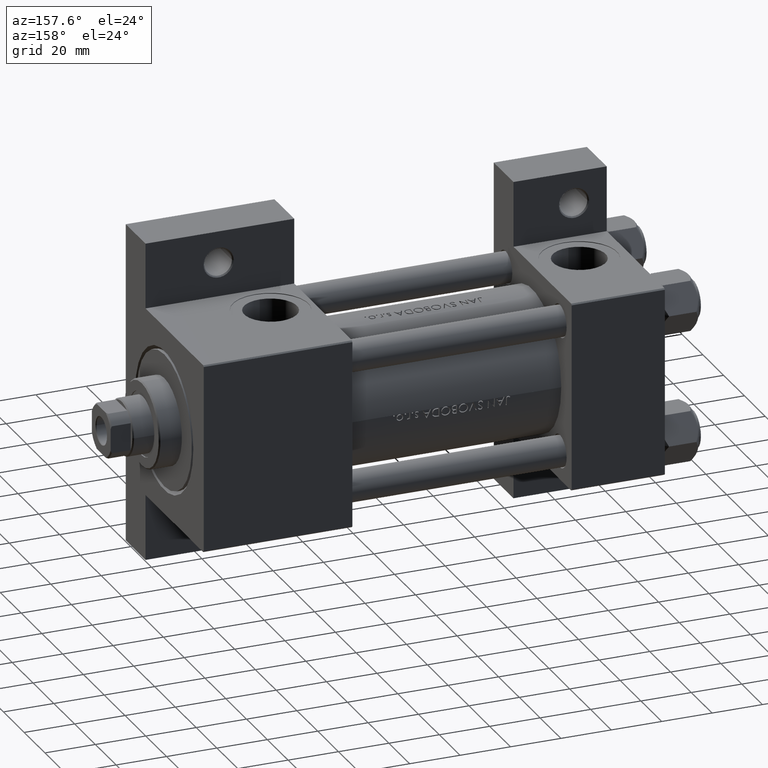
[diagram: clean part render]
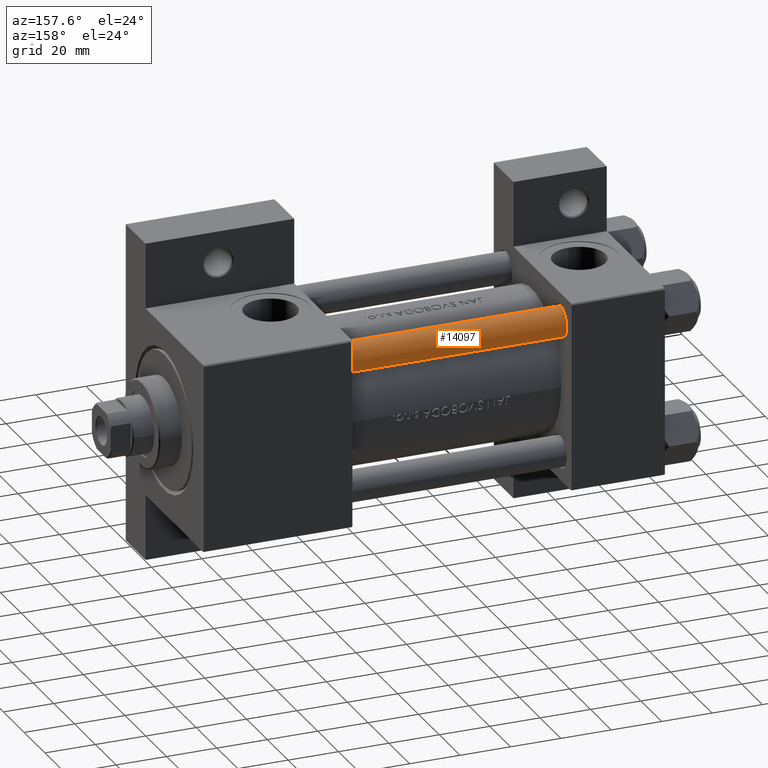
[diagram: same view with one face highlighted and labeled with its STEP entity id]
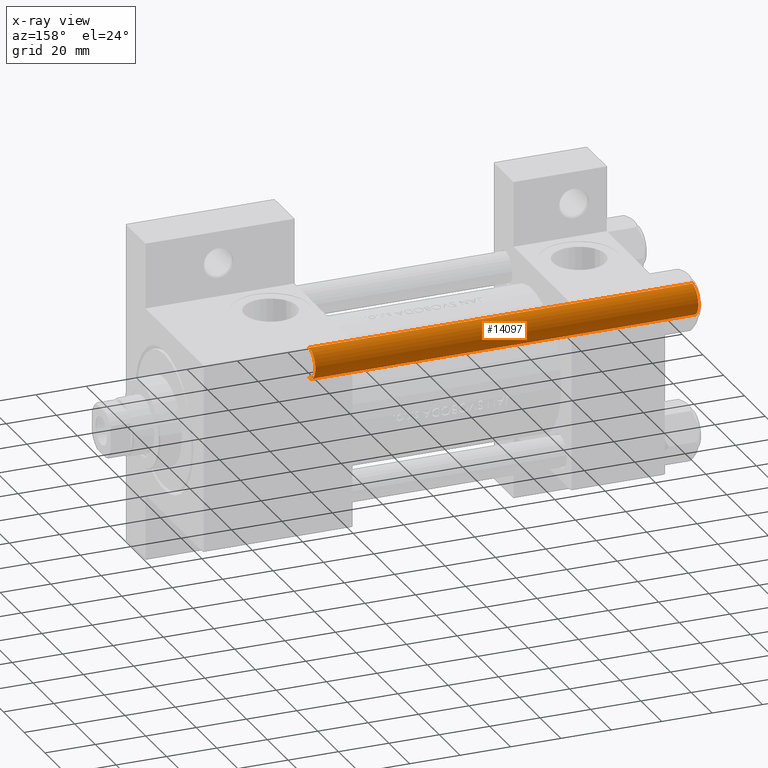
[diagram: x-ray of the same camera — body ghosted, the highlighted face saturated]
A machine part, auxiliary view. The second image highlights one B-rep face of the part: STEP entity #14097.
The next image is the same camera in x-ray: the body ghosted, the highlighted face saturated — about 0% of this face is hidden behind the body in this view.
In plain terms, the highlighted cylindrical surface (edge-blend (fillet) strip) has radius 6 mm, axis along (-1, -0, -0).
Its self-contained STEP definition (entity closure, byte-faithful):
#566 = VERTEX_POINT ( 'NONE', #15950 ) ;
#6436 = EDGE_CURVE ( 'NONE', #7731, #20792, #13176, .T. ) ;
#7593 = ORIENTED_EDGE ( 'NONE', *, *, #6436, .T. ) ;
#7731 = VERTEX_POINT ( 'NONE', #20464 ) ;
#10281 = DIRECTION ( 'NONE',  ( -0.000000000000000000, -0.000000000000000000, -1.000000000000000000 ) ) ;
#11731 = CARTESIAN_POINT ( 'NONE',  ( 0.000000000000000000, 0.000000000000000000, 152.5000000000000000 ) ) ;
#12709 = DIRECTION ( 'NONE',  ( 1.000000000000000000, 0.000000000000000000, 0.000000000000000000 ) ) ;
#13176 = CIRCLE ( 'NONE', #18719, 6.000000000000000888 ) ;
#14097 = ADVANCED_FACE ( 'NONE', ( #48799 ), #49285, .T. ) ;
#14240 = CARTESIAN_POINT ( 'NONE',  ( 6.000000000000000888, 7.347880794884120722E-16, 152.5000000000000000 ) ) ;
#14438 = LINE ( 'NONE', #40552, #26119 ) ;
#15950 = CARTESIAN_POINT ( 'NONE',  ( -6.000000000000000888, 0.000000000000000000, 0.5000000000000281997 ) ) ;
#16016 = ORIENTED_EDGE ( 'NONE', *, *, #19140, .F. ) ;
#16040 = CIRCLE ( 'NONE', #16869, 6.000000000000000888 ) ;
#16869 = AXIS2_PLACEMENT_3D ( 'NONE', #38504, #30080, #22855 ) ;
#18719 = AXIS2_PLACEMENT_3D ( 'NONE', #11731, #26920, #12709 ) ;
#19140 = EDGE_CURVE ( 'NONE', #7731, #566, #14438, .T. ) ;
#19167 = DIRECTION ( 'NONE',  ( -1.000000000000000000, 0.000000000000000000, 0.000000000000000000 ) ) ;
#20464 = CARTESIAN_POINT ( 'NONE',  ( -6.000000000000000888, 0.000000000000000000, 152.5000000000000000 ) ) ;
#20792 = VERTEX_POINT ( 'NONE', #14240 ) ;
#22119 = AXIS2_PLACEMENT_3D ( 'NONE', #33571, #44799, #19167 ) ;
#22855 = DIRECTION ( 'NONE',  ( 1.000000000000000000, 0.000000000000000000, 0.000000000000000000 ) ) ;
#24265 = EDGE_CURVE ( 'NONE', #20792, #29603, #47632, .T. ) ;
#24504 = ORIENTED_EDGE ( 'NONE', *, *, #43736, .T. ) ;
#25409 = DIRECTION ( 'NONE',  ( -0.000000000000000000, -0.000000000000000000, -1.000000000000000000 ) ) ;
#26119 = VECTOR ( 'NONE', #25409, 1000.000000000000000 ) ;
#26920 = DIRECTION ( 'NONE',  ( 0.000000000000000000, 0.000000000000000000, -1.000000000000000000 ) ) ;
#29603 = VERTEX_POINT ( 'NONE', #33030 ) ;
#30080 = DIRECTION ( 'NONE',  ( -0.000000000000000000, -0.000000000000000000, 1.000000000000000000 ) ) ;
#31230 = EDGE_LOOP ( 'NONE', ( #7593, #36214, #24504, #16016 ) ) ;
#33030 = CARTESIAN_POINT ( 'NONE',  ( 6.000000000000000888, 7.347880794884120722E-16, 0.5000000000000281997 ) ) ;
#33571 = CARTESIAN_POINT ( 'NONE',  ( 0.000000000000000000, 0.000000000000000000, 153.0000000000000000 ) ) ;
#35035 = VECTOR ( 'NONE', #10281, 1000.000000000000000 ) ;
#36214 = ORIENTED_EDGE ( 'NONE', *, *, #24265, .T. ) ;
#38504 = CARTESIAN_POINT ( 'NONE',  ( 0.000000000000000000, 0.000000000000000000, 0.5000000000000281997 ) ) ;
#40552 = CARTESIAN_POINT ( 'NONE',  ( -6.000000000000000888, 0.000000000000000000, 153.0000000000000000 ) ) ;
#43736 = EDGE_CURVE ( 'NONE', #29603, #566, #16040, .T. ) ;
#44372 = CARTESIAN_POINT ( 'NONE',  ( 6.000000000000000888, 7.347880794884120722E-16, 153.0000000000000000 ) ) ;
#44799 = DIRECTION ( 'NONE',  ( -0.000000000000000000, -0.000000000000000000, -1.000000000000000000 ) ) ;
#47632 = LINE ( 'NONE', #44372, #35035 ) ;
#48799 = FACE_OUTER_BOUND ( 'NONE', #31230, .T. ) ;
#49285 = CYLINDRICAL_SURFACE ( 'NONE', #22119, 6.000000000000000888 ) ;